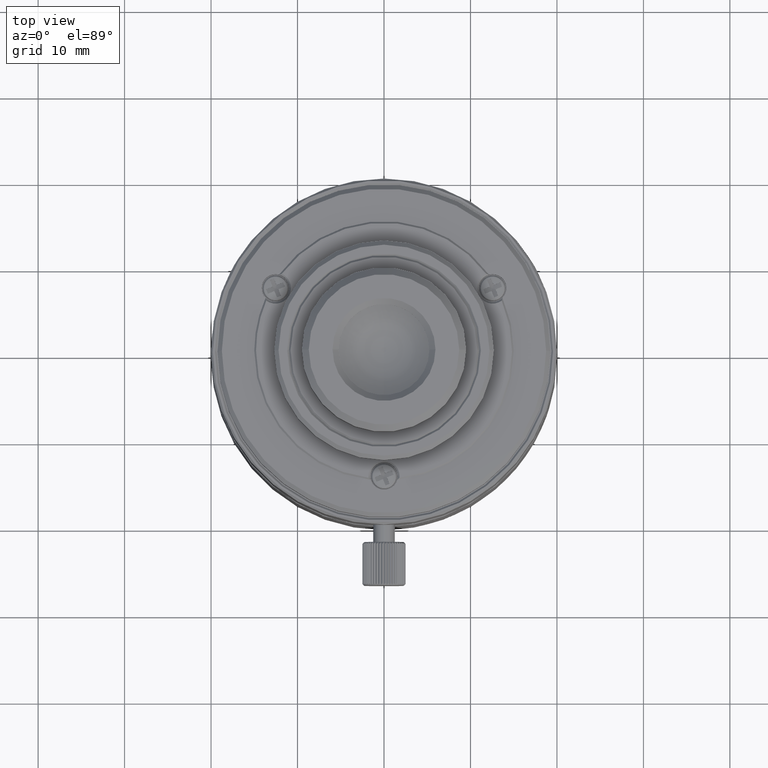
[diagram: clean part render]
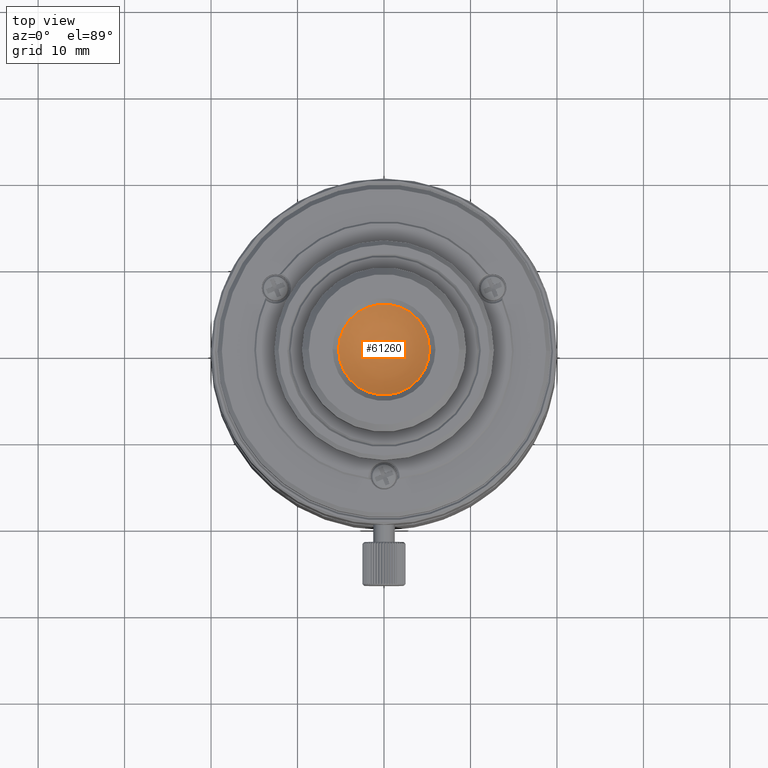
[diagram: same view with one face highlighted and labeled with its STEP entity id]
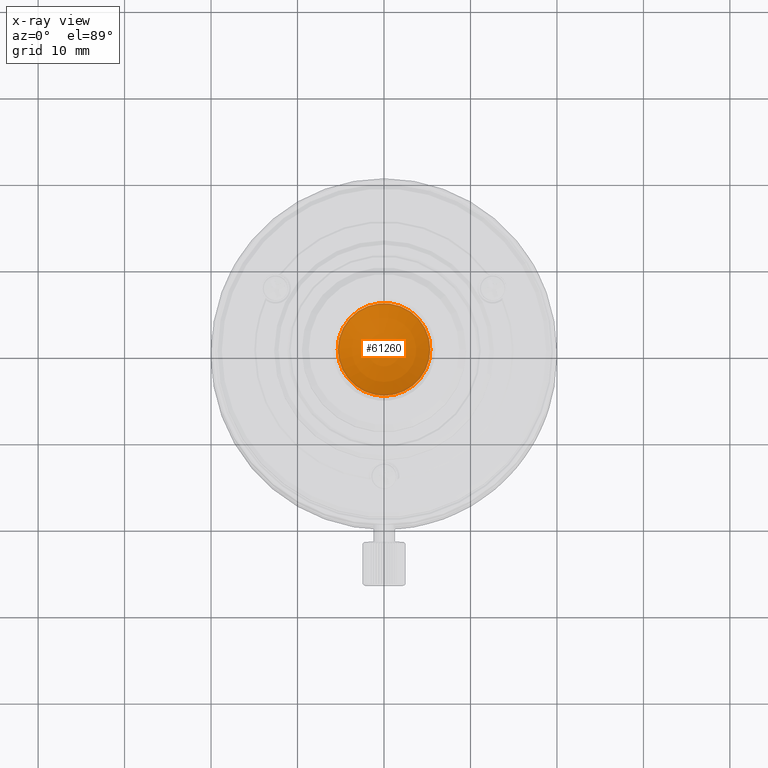
[diagram: x-ray of the same camera — body ghosted, the highlighted face saturated]
A machine part, top view. The second image highlights one B-rep face of the part: STEP entity #61260.
The next image is the same camera in x-ray: the body ghosted, the highlighted face saturated — about 0% of this face is hidden behind the body in this view.
In plain terms, the highlighted spherical surface has radius 8.58 mm.
Its self-contained STEP definition (entity closure, byte-faithful):
#359 = DIRECTION ( 'NONE',  ( 0.000000000000000000, 0.000000000000000000, 1.000000000000000000 ) ) ;
#1917 = EDGE_CURVE ( 'NONE', #51532, #70060, #43084, .T. ) ;
#3069 = DIRECTION ( 'NONE',  ( 0.000000000000000000, 0.000000000000000000, 1.000000000000000000 ) ) ;
#3276 = CARTESIAN_POINT ( 'NONE',  ( 5.363709410356999996, 0.000000000000000000, 52.85124505631999625 ) ) ;
#3751 = EDGE_LOOP ( 'NONE', ( #52354, #33501 ) ) ;
#3896 = CARTESIAN_POINT ( 'NONE',  ( 0.000000000000000000, 0.000000000000000000, 52.85124505631999625 ) ) ;
#9777 = DIRECTION ( 'NONE',  ( 1.000000000000000000, 0.000000000000000000, 0.000000000000000000 ) ) ;
#10943 = AXIS2_PLACEMENT_3D ( 'NONE', #3896, #3069, #9777 ) ;
#18838 = CIRCLE ( 'NONE', #44282, 5.363709410356999996 ) ;
#21040 = CARTESIAN_POINT ( 'NONE',  ( 0.000000000000000000, 0.000000000000000000, 52.85124505631999625 ) ) ;
#21954 = EDGE_CURVE ( 'NONE', #70060, #51532, #18838, .T. ) ;
#26911 = DIRECTION ( 'NONE',  ( 0.000000000000000000, 0.000000000000000000, 1.000000000000000000 ) ) ;
#30567 = CARTESIAN_POINT ( 'NONE',  ( 0.000000000000000000, 0.000000000000000000, 59.54803692714999386 ) ) ;
#31806 = SPHERICAL_SURFACE ( 'NONE', #53936, 8.580000000000000071 ) ;
#33501 = ORIENTED_EDGE ( 'NONE', *, *, #1917, .T. ) ;
#40054 = CARTESIAN_POINT ( 'NONE',  ( -5.363709410356999996, 6.568649560950237228E-16, 52.85124505631999625 ) ) ;
#43084 = CIRCLE ( 'NONE', #10943, 5.363709410356999996 ) ;
#43981 = FACE_OUTER_BOUND ( 'NONE', #3751, .T. ) ;
#44282 = AXIS2_PLACEMENT_3D ( 'NONE', #21040, #26911, #52938 ) ;
#51532 = VERTEX_POINT ( 'NONE', #40054 ) ;
#52354 = ORIENTED_EDGE ( 'NONE', *, *, #21954, .T. ) ;
#52938 = DIRECTION ( 'NONE',  ( 1.000000000000000000, 0.000000000000000000, 0.000000000000000000 ) ) ;
#53936 = AXIS2_PLACEMENT_3D ( 'NONE', #30567, #359, #56177 ) ;
#56177 = DIRECTION ( 'NONE',  ( 0.000000000000000000, -1.000000000000000000, 0.000000000000000000 ) ) ;
#61260 = ADVANCED_FACE ( 'NONE', ( #43981 ), #31806, .F. ) ;
#70060 = VERTEX_POINT ( 'NONE', #3276 ) ;